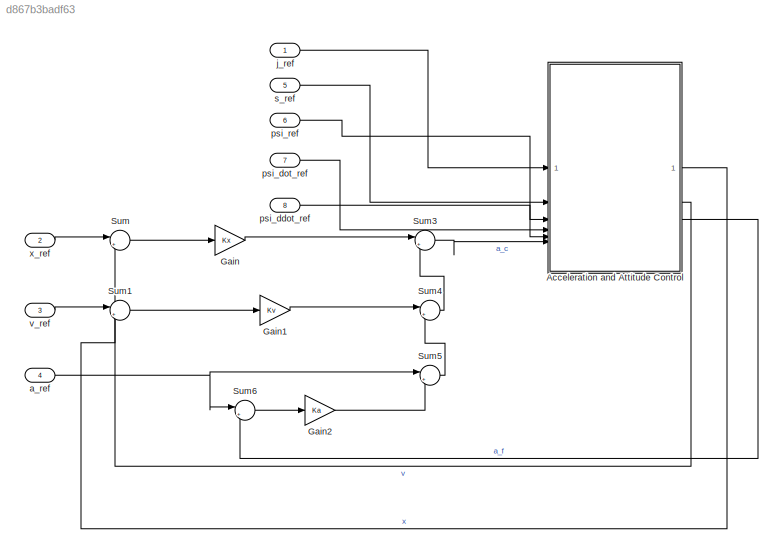
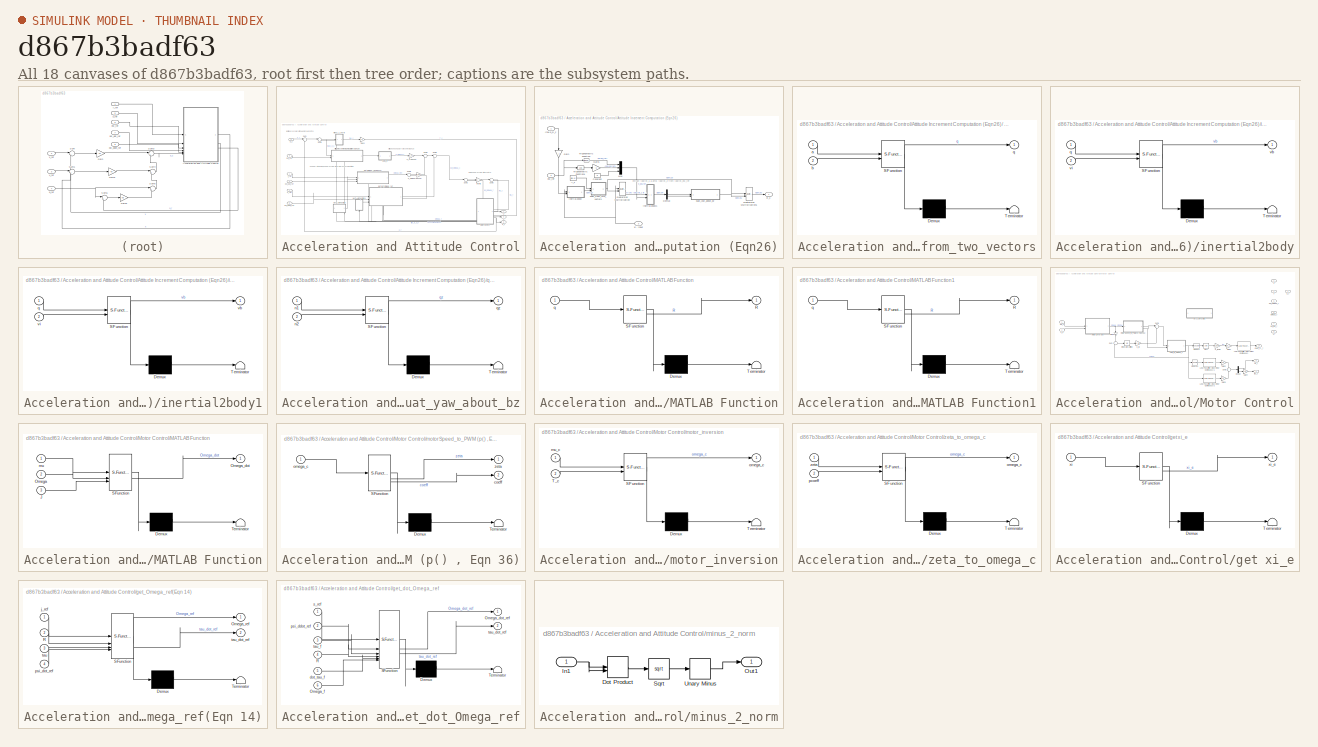
[diagram: thumbnail index - all 18 canvases of the model, root first then tree order]
MODEL slx_d867b3badf63
KIND model
CONFIG AbsTol = auto
CONFIG EnableMultiTasking = off
CONFIG FixedStep = auto
CONFIG MaxStep = auto
CONFIG MinStep = auto
CONFIG RelTol = 1e-3
CONFIG SampleTimeConstraint = Unconstrained
CONFIG SolverName = VariableStepAuto
CONFIG StartTime = 0.0
CONFIG StopTime = 10.0
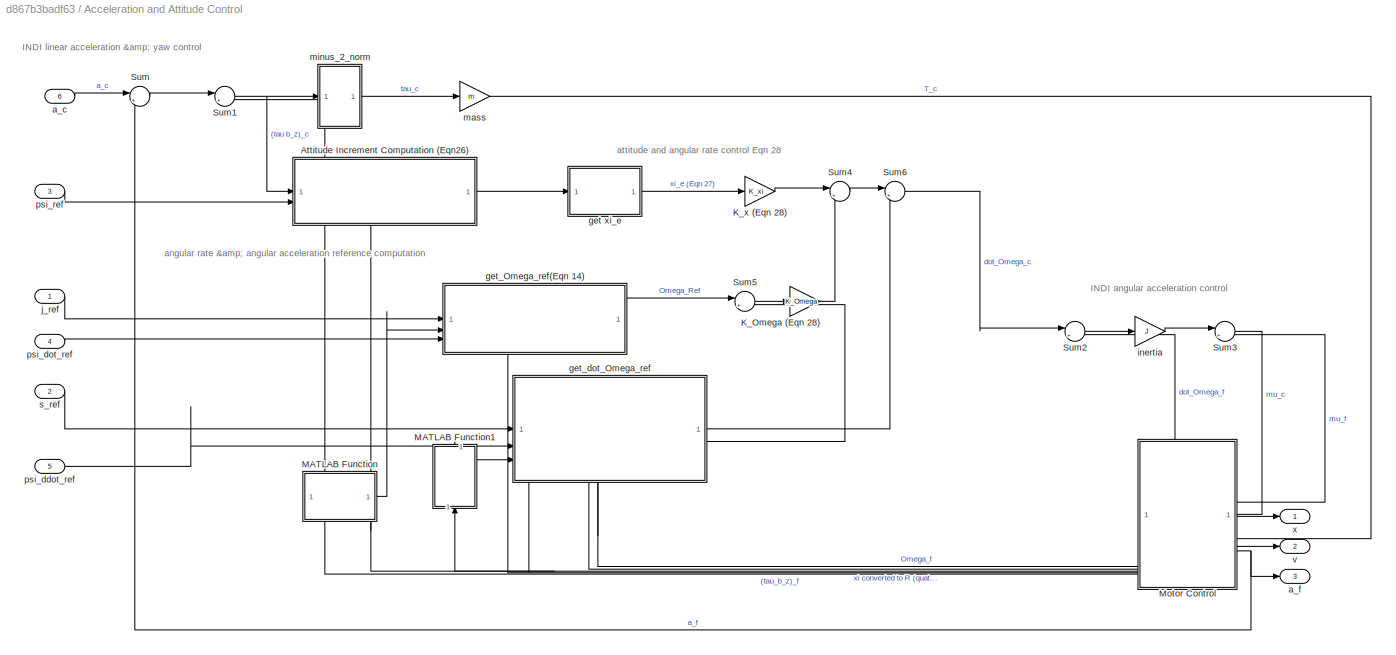
BLOCK [SubSystem] Acceleration and Attitude Control
BLOCK [SubSystem] Acceleration and Attitude Control/Attitude Increment Computation (Eqn26)
BLOCK [SubSystem] Acceleration and Attitude Control/Attitude Increment Computation (Eqn26)/ quat_from_two_vectors
  ErrorFcn = Stateflow.Translate.translate
  PermitHierarchicalResolution = ExplicitOnly
  SFBlockType = MATLAB Function
  TreatAsAtomicUnit = on
BLOCK [Demux] Acceleration and Attitude Control/Attitude Increment Computation (Eqn26)/ quat_from_two_vectors/ Demux 
  Outputs = 1
BLOCK [S-Function] Acceleration and Attitude Control/Attitude Increment Computation (Eqn26)/ quat_from_two_vectors/ SFunction 
  EnableBusSupport = off
  FunctionName = sf_sfun
  PortCounts = [2 2]
  SFcnIsStateOwnerBlock = off
  SFunctionDeploymentMode = off
  Tag = Stateflow S-Function 1
BLOCK [Terminator] Acceleration and Attitude Control/Attitude Increment Computation (Eqn26)/ quat_from_two_vectors/ Terminator 
BLOCK [Inport] Acceleration and Attitude Control/Attitude Increment Computation (Eqn26)/ quat_from_two_vectors/a
BLOCK [Inport] Acceleration and Attitude Control/Attitude Increment Computation (Eqn26)/ quat_from_two_vectors/b
  Port = 2
BLOCK [Outport] Acceleration and Attitude Control/Attitude Increment Computation (Eqn26)/ quat_from_two_vectors/q
BLOCK [Inport] Acceleration and Attitude Control/Attitude Increment Computation (Eqn26)/(tau b_z)_c
BLOCK [Constant] Acceleration and Attitude Control/Attitude Increment Computation (Eqn26)/-i_z
  Value = [0 0 -1]
BLOCK [Constant] Acceleration and Attitude Control/Attitude Increment Computation (Eqn26)/Constant
  Value = 0
BLOCK [Demux] Acceleration and Attitude Control/Attitude Increment Computation (Eqn26)/Demux
  Outputs = 2
BLOCK [Gain] Acceleration and Attitude Control/Attitude Increment Computation (Eqn26)/Gain
  Gain = -1
  NameLocation = left
BLOCK [Gain] Acceleration and Attitude Control/Attitude Increment Computation (Eqn26)/Gain1
  Gain = -1
BLOCK [Mux] Acceleration and Attitude Control/Attitude Increment Computation (Eqn26)/Mux
  DisplayOption = bar
  Inputs = 3
BLOCK [Reference] Acceleration and Attitude Control/Attitude Increment Computation (Eqn26)/Quaternion Multiplication  REF=aerolibutil/Quaternion
Multiplication
  SourceBlock = aerolibutil/Quaternion\nMultiplication
  SourceType = Quaternion Multiplication
BLOCK [Reference] Acceleration and Attitude Control/Attitude Increment Computation (Eqn26)/Quaternion Multiplication1  REF=aerolibutil/Quaternion
Multiplication
  SourceBlock = aerolibutil/Quaternion\nMultiplication
  SourceType = Quaternion Multiplication
BLOCK [Trigonometry] Acceleration and Attitude Control/Attitude Increment Computation (Eqn26)/Trigonometric Function
BLOCK [Trigonometry] Acceleration and Attitude Control/Attitude Increment Computation (Eqn26)/Trigonometric Function1
  Operator = cos
BLOCK [SubSystem] Acceleration and Attitude Control/Attitude Increment Computation (Eqn26)/inertial2body
  ErrorFcn = Stateflow.Translate.translate
  PermitHierarchicalResolution = ExplicitOnly
  SFBlockType = MATLAB Function
  TreatAsAtomicUnit = on
BLOCK [Demux] Acceleration and Attitude Control/Attitude Increment Computation (Eqn26)/inertial2body/ Demux 
  Outputs = 1
BLOCK [S-Function] Acceleration and Attitude Control/Attitude Increment Computation (Eqn26)/inertial2body/ SFunction 
  EnableBusSupport = off
  FunctionName = sf_sfun
  PortCounts = [2 2]
  SFcnIsStateOwnerBlock = off
  SFunctionDeploymentMode = off
  Tag = Stateflow S-Function 2
BLOCK [Terminator] Acceleration and Attitude Control/Attitude Increment Computation (Eqn26)/inertial2body/ Terminator 
BLOCK [Inport] Acceleration and Attitude Control/Attitude Increment Computation (Eqn26)/inertial2body/q
BLOCK [Outport] Acceleration and Attitude Control/Attitude Increment Computation (Eqn26)/inertial2body/vb
BLOCK [Inport] Acceleration and Attitude Control/Attitude Increment Computation (Eqn26)/inertial2body/vi
  Port = 2
BLOCK [SubSystem] Acceleration and Attitude Control/Attitude Increment Computation (Eqn26)/inertial2body1
  ErrorFcn = Stateflow.Translate.translate
  PermitHierarchicalResolution = ExplicitOnly
  SFBlockType = MATLAB Function
  TreatAsAtomicUnit = on
BLOCK [Demux] Acceleration and Attitude Control/Attitude Increment Computation (Eqn26)/inertial2body1/ Demux 
  Outputs = 1
BLOCK [S-Function] Acceleration and Attitude Control/Attitude Increment Computation (Eqn26)/inertial2body1/ SFunction 
  EnableBusSupport = off
  FunctionName = sf_sfun
  PortCounts = [2 2]
  SFcnIsStateOwnerBlock = off
  SFunctionDeploymentMode = off
  Tag = Stateflow S-Function 3
BLOCK [Terminator] Acceleration and Attitude Control/Attitude Increment Computation (Eqn26)/inertial2body1/ Terminator 
BLOCK [Inport] Acceleration and Attitude Control/Attitude Increment Computation (Eqn26)/inertial2body1/q
BLOCK [Outport] Acceleration and Attitude Control/Attitude Increment Computation (Eqn26)/inertial2body1/vb
BLOCK [Inport] Acceleration and Attitude Control/Attitude Increment Computation (Eqn26)/inertial2body1/vi
  Port = 2
BLOCK [Inport] Acceleration and Attitude Control/Attitude Increment Computation (Eqn26)/psi_ref
  Port = 2
BLOCK [SubSystem] Acceleration and Attitude Control/Attitude Increment Computation (Eqn26)/quat_yaw_about_bz
  ErrorFcn = Stateflow.Translate.translate
  PermitHierarchicalResolution = ExplicitOnly
  SFBlockType = MATLAB Function
  TreatAsAtomicUnit = on
BLOCK [Demux] Acceleration and Attitude Control/Attitude Increment Computation (Eqn26)/quat_yaw_about_bz/ Demux 
  Outputs = 1
BLOCK [S-Function] Acceleration and Attitude Control/Attitude Increment Computation (Eqn26)/quat_yaw_about_bz/ SFunction 
  EnableBusSupport = off
  FunctionName = sf_sfun
  PortCounts = [2 2]
  SFcnIsStateOwnerBlock = off
  SFunctionDeploymentMode = off
  Tag = Stateflow S-Function 4
BLOCK [Terminator] Acceleration and Attitude Control/Attitude Increment Computation (Eqn26)/quat_yaw_about_bz/ Terminator 
BLOCK [Inport] Acceleration and Attitude Control/Attitude Increment Computation (Eqn26)/quat_yaw_about_bz/n1
BLOCK [Inport] Acceleration and Attitude Control/Attitude Increment Computation (Eqn26)/quat_yaw_about_bz/n2
  Port = 2
BLOCK [Outport] Acceleration and Attitude Control/Attitude Increment Computation (Eqn26)/quat_yaw_about_bz/qz
BLOCK [Inport] Acceleration and Attitude Control/Attitude Increment Computation (Eqn26)/xi, input
  Port = 3
BLOCK [Outport] Acceleration and Attitude Control/Attitude Increment Computation (Eqn26)/xi_c
BLOCK [Gain] Acceleration and Attitude Control/K_Omega (Eqn 28)
  Gain = K_Omega
BLOCK [Gain] Acceleration and Attitude Control/K_x (Eqn 28)
  Gain = K_xi
BLOCK [SubSystem] Acceleration and Attitude Control/MATLAB Function
  ErrorFcn = Stateflow.Translate.translate
  PermitHierarchicalResolution = ExplicitOnly
  SFBlockType = MATLAB Function
  TreatAsAtomicUnit = on
BLOCK [Demux] Acceleration and Attitude Control/MATLAB Function/ Demux 
  Outputs = 1
BLOCK [S-Function] Acceleration and Attitude Control/MATLAB Function/ SFunction 
  EnableBusSupport = off
  FunctionName = sf_sfun
  PortCounts = [1 2]
  SFcnIsStateOwnerBlock = off
  SFunctionDeploymentMode = off
  Tag = Stateflow S-Function 6
BLOCK [Terminator] Acceleration and Attitude Control/MATLAB Function/ Terminator 
BLOCK [Outport] Acceleration and Attitude Control/MATLAB Function/R
BLOCK [Inport] Acceleration and Attitude Control/MATLAB Function/q
BLOCK [SubSystem] Acceleration and Attitude Control/MATLAB Function1
  ErrorFcn = Stateflow.Translate.translate
  NameLocation = right
  PermitHierarchicalResolution = ExplicitOnly
  SFBlockType = MATLAB Function
  TreatAsAtomicUnit = on
BLOCK [Demux] Acceleration and Attitude Control/MATLAB Function1/ Demux 
  Outputs = 1
BLOCK [S-Function] Acceleration and Attitude Control/MATLAB Function1/ SFunction 
  EnableBusSupport = off
  FunctionName = sf_sfun
  PortCounts = [1 2]
  SFcnIsStateOwnerBlock = off
  SFunctionDeploymentMode = off
  Tag = Stateflow S-Function 8
BLOCK [Terminator] Acceleration and Attitude Control/MATLAB Function1/ Terminator 
BLOCK [Outport] Acceleration and Attitude Control/MATLAB Function1/R
BLOCK [Inport] Acceleration and Attitude Control/MATLAB Function1/q
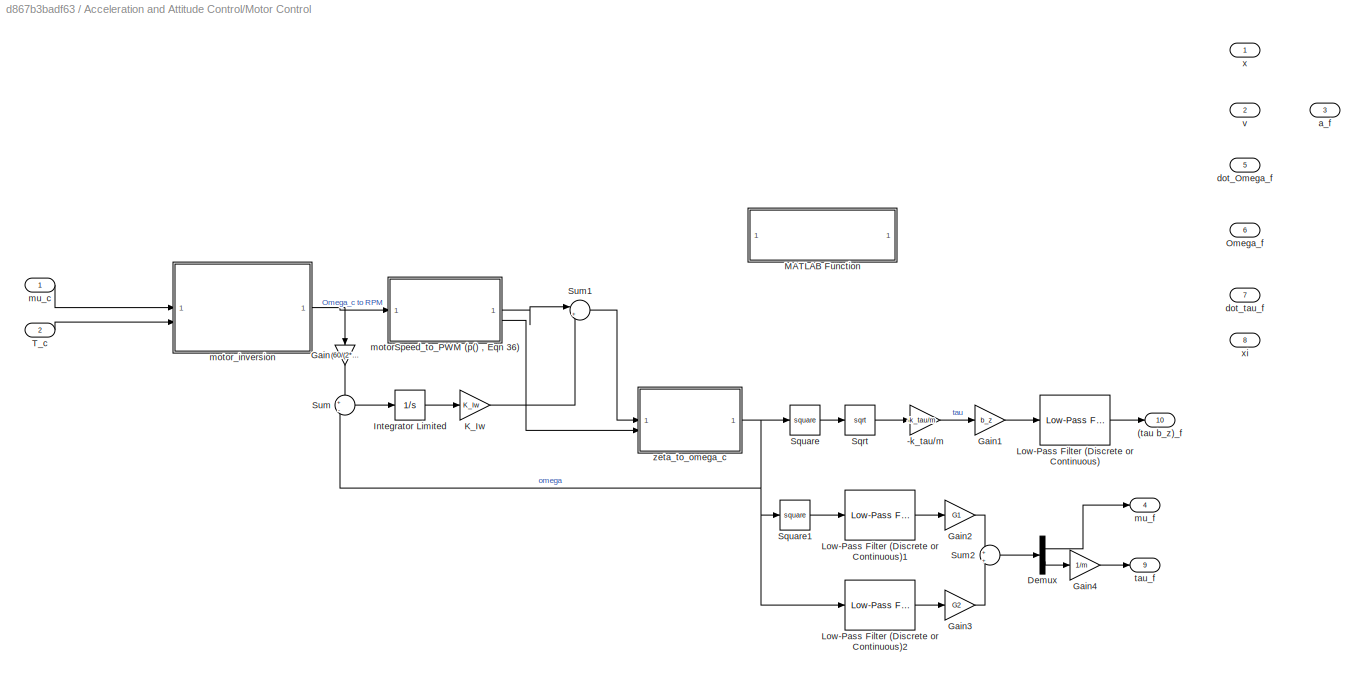
BLOCK [SubSystem] Acceleration and Attitude Control/Motor Control
  PortSchema = {"entries":[{"content":{"sides":[{"content":{"connectorIds":["Out4","Out5","Out6","Out7","Out8","Out9","Out10"]},"type":"ConnectorPlacement.EquallySpacedRectSide","uuid":"f723bf6c-4c67-423b-a9c3-cd0bb2707477"},{"content":{"connectorIds":["In1","In2","Out1","Out2","Out3"],"side":"RIGHT"},"type":"ConnectorPlacement.EquallySpacedRectSide","uuid":"19dd196b-8b88-4a00-85ef-e6774b90729c"},{"content":{"si...<+292ch>
BLOCK [Outport] Acceleration and Attitude Control/Motor Control/(tau b_z)_f
  Port = 10
BLOCK [Gain] Acceleration and Attitude Control/Motor Control/-k_tau//m
  Gain = -k_tau/m
BLOCK [Demux] Acceleration and Attitude Control/Motor Control/Demux
  Outputs = 2
BLOCK [Gain] Acceleration and Attitude Control/Motor Control/Gain
  Gain = (60/(2*pi))
  NameLocation = left
BLOCK [Gain] Acceleration and Attitude Control/Motor Control/Gain1
  Gain = b_z
BLOCK [Gain] Acceleration and Attitude Control/Motor Control/Gain2
  Gain = G1
BLOCK [Gain] Acceleration and Attitude Control/Motor Control/Gain3
  Gain = G2
BLOCK [Gain] Acceleration and Attitude Control/Motor Control/Gain4
  Gain = 1/m
BLOCK [Integrator] Acceleration and Attitude Control/Motor Control/Integrator Limited
  LimitOutput = on
  LowerSaturationLimit = 0
  UpperSaturationLimit = 22598
BLOCK [Gain] Acceleration and Attitude Control/Motor Control/K_Iw
  Gain = K_Iw
BLOCK [Reference] Acceleration and Attitude Control/Motor Control/Low-Pass Filter (Discrete or Continuous)  REF=eeGeneralControl/Low-Pass Filter
(Discrete or Continuous)
  LibrarySourceBlock = ee_sl_lib/General Control/Low-Pass Filter\n(Discrete or Continuous)
  SourceBlock = eeGeneralControl/Low-Pass Filter\n(Discrete or Continuous)
  SourceType = Low-Pass Filter (Discrete or Continuous)
BLOCK [Reference] Acceleration and Attitude Control/Motor Control/Low-Pass Filter (Discrete or Continuous)1  REF=eeGeneralControl/Low-Pass Filter
(Discrete or Continuous)
  LibrarySourceBlock = ee_sl_lib/General Control/Low-Pass Filter\n(Discrete or Continuous)
  SourceBlock = eeGeneralControl/Low-Pass Filter\n(Discrete or Continuous)
  SourceType = Low-Pass Filter (Discrete or Continuous)
BLOCK [Reference] Acceleration and Attitude Control/Motor Control/Low-Pass Filter (Discrete or Continuous)2  REF=eeGeneralControl/Low-Pass Filter
(Discrete or Continuous)
  LibrarySourceBlock = ee_sl_lib/General Control/Low-Pass Filter\n(Discrete or Continuous)
  SourceBlock = eeGeneralControl/Low-Pass Filter\n(Discrete or Continuous)
  SourceType = Low-Pass Filter (Discrete or Continuous)
BLOCK [SubSystem] Acceleration and Attitude Control/Motor Control/MATLAB Function
  ErrorFcn = Stateflow.Translate.translate
  PermitHierarchicalResolution = ExplicitOnly
  SFBlockType = MATLAB Function
  TreatAsAtomicUnit = on
BLOCK [Demux] Acceleration and Attitude Control/Motor Control/MATLAB Function/ Demux 
  Outputs = 1
BLOCK [S-Function] Acceleration and Attitude Control/Motor Control/MATLAB Function/ SFunction 
  EnableBusSupport = off
  FunctionName = sf_sfun
  PortCounts = [3 2]
  SFcnIsStateOwnerBlock = off
  SFunctionDeploymentMode = off
  Tag = Stateflow S-Function 13
BLOCK [Terminator] Acceleration and Attitude Control/Motor Control/MATLAB Function/ Terminator 
BLOCK [Inport] Acceleration and Attitude Control/Motor Control/MATLAB Function/J
  Port = 3
BLOCK [Inport] Acceleration and Attitude Control/Motor Control/MATLAB Function/Omega
  Port = 2
BLOCK [Outport] Acceleration and Attitude Control/Motor Control/MATLAB Function/Omega_dot
BLOCK [Inport] Acceleration and Attitude Control/Motor Control/MATLAB Function/mu
BLOCK [Outport] Acceleration and Attitude Control/Motor Control/Omega_f
  Port = 6
BLOCK [Sqrt] Acceleration and Attitude Control/Motor Control/Sqrt
BLOCK [Math] Acceleration and Attitude Control/Motor Control/Square
  Operator = square
BLOCK [Math] Acceleration and Attitude Control/Motor Control/Square1
  Operator = square
BLOCK [Sum] Acceleration and Attitude Control/Motor Control/Sum
  Inputs = +|-
BLOCK [Sum] Acceleration and Attitude Control/Motor Control/Sum1
  Inputs = |++
BLOCK [Sum] Acceleration and Attitude Control/Motor Control/Sum2
  Inputs = +|+
BLOCK [Inport] Acceleration and Attitude Control/Motor Control/T_c
  Port = 2
BLOCK [Outport] Acceleration and Attitude Control/Motor Control/a_f
  Port = 3
BLOCK [Outport] Acceleration and Attitude Control/Motor Control/dot_Omega_f
  Port = 5
BLOCK [Outport] Acceleration and Attitude Control/Motor Control/dot_tau_f
  Port = 7
BLOCK [SubSystem] Acceleration and Attitude Control/Motor Control/motorSpeed_to_PWM (p() , Eqn 36)
  ErrorFcn = Stateflow.Translate.translate
  PermitHierarchicalResolution = ExplicitOnly
  SFBlockType = MATLAB Function
  TreatAsAtomicUnit = on
BLOCK [Demux] Acceleration and Attitude Control/Motor Control/motorSpeed_to_PWM (p() , Eqn 36)/ Demux 
  Outputs = 1
BLOCK [S-Function] Acceleration and Attitude Control/Motor Control/motorSpeed_to_PWM (p() , Eqn 36)/ SFunction 
  EnableBusSupport = off
  FunctionName = sf_sfun
  PortCounts = [1 3]
  SFcnIsStateOwnerBlock = off
  SFunctionDeploymentMode = off
  Tag = Stateflow S-Function 11
BLOCK [Terminator] Acceleration and Attitude Control/Motor Control/motorSpeed_to_PWM (p() , Eqn 36)/ Terminator 
BLOCK [Outport] Acceleration and Attitude Control/Motor Control/motorSpeed_to_PWM (p() , Eqn 36)/coeff
  Port = 2
BLOCK [Inport] Acceleration and Attitude Control/Motor Control/motorSpeed_to_PWM (p() , Eqn 36)/omega_c
BLOCK [Outport] Acceleration and Attitude Control/Motor Control/motorSpeed_to_PWM (p() , Eqn 36)/zeta
BLOCK [SubSystem] Acceleration and Attitude Control/Motor Control/motor_inversion
  ErrorFcn = Stateflow.Translate.translate
  PermitHierarchicalResolution = ExplicitOnly
  SFBlockType = MATLAB Function
  TreatAsAtomicUnit = on
BLOCK [Demux] Acceleration and Attitude Control/Motor Control/motor_inversion/ Demux 
  Outputs = 1
BLOCK [S-Function] Acceleration and Attitude Control/Motor Control/motor_inversion/ SFunction 
  EnableBusSupport = off
  FunctionName = sf_sfun
  PortCounts = [2 2]
  SFcnIsStateOwnerBlock = off
  SFunctionDeploymentMode = off
  Tag = Stateflow S-Function 10
BLOCK [Terminator] Acceleration and Attitude Control/Motor Control/motor_inversion/ Terminator 
BLOCK [Inport] Acceleration and Attitude Control/Motor Control/motor_inversion/T_c
  Port = 2
BLOCK [Inport] Acceleration and Attitude Control/Motor Control/motor_inversion/mu_c
BLOCK [Outport] Acceleration and Attitude Control/Motor Control/motor_inversion/omega_c
BLOCK [Inport] Acceleration and Attitude Control/Motor Control/mu_c
BLOCK [Outport] Acceleration and Attitude Control/Motor Control/mu_f
  Port = 4
BLOCK [Outport] Acceleration and Attitude Control/Motor Control/tau_f
  Port = 9
BLOCK [Outport] Acceleration and Attitude Control/Motor Control/v
  Port = 2
BLOCK [Outport] Acceleration and Attitude Control/Motor Control/x
BLOCK [Outport] Acceleration and Attitude Control/Motor Control/xi
  Port = 8
BLOCK [SubSystem] Acceleration and Attitude Control/Motor Control/zeta_to_omega_c
  ErrorFcn = Stateflow.Translate.translate
  PermitHierarchicalResolution = ExplicitOnly
  SFBlockType = MATLAB Function
  TreatAsAtomicUnit = on
BLOCK [Demux] Acceleration and Attitude Control/Motor Control/zeta_to_omega_c/ Demux 
  Outputs = 1
BLOCK [S-Function] Acceleration and Attitude Control/Motor Control/zeta_to_omega_c/ SFunction 
  EnableBusSupport = off
  FunctionName = sf_sfun
  PortCounts = [2 2]
  SFcnIsStateOwnerBlock = off
  SFunctionDeploymentMode = off
  Tag = Stateflow S-Function 12
BLOCK [Terminator] Acceleration and Attitude Control/Motor Control/zeta_to_omega_c/ Terminator 
BLOCK [Outport] Acceleration and Attitude Control/Motor Control/zeta_to_omega_c/omega_c
BLOCK [Inport] Acceleration and Attitude Control/Motor Control/zeta_to_omega_c/pcoeff
  Port = 2
BLOCK [Inport] Acceleration and Attitude Control/Motor Control/zeta_to_omega_c/zeta
BLOCK [Sum] Acceleration and Attitude Control/Sum
  Inputs = |+-
BLOCK [Sum] Acceleration and Attitude Control/Sum1
  Inputs = |++
BLOCK [Sum] Acceleration and Attitude Control/Sum2
  Inputs = |+-
BLOCK [Sum] Acceleration and Attitude Control/Sum3
  Inputs = |++
BLOCK [Sum] Acceleration and Attitude Control/Sum4
  Inputs = |++
BLOCK [Sum] Acceleration and Attitude Control/Sum5
  Inputs = |+-
BLOCK [Sum] Acceleration and Attitude Control/Sum6
  Inputs = |++
BLOCK [Inport] Acceleration and Attitude Control/a_c
  Port = 6
BLOCK [Outport] Acceleration and Attitude Control/a_f
  Port = 3
BLOCK [SubSystem] Acceleration and Attitude Control/get xi_e
  ErrorFcn = Stateflow.Translate.translate
  PermitHierarchicalResolution = ExplicitOnly
  SFBlockType = MATLAB Function
  TreatAsAtomicUnit = on
BLOCK [Demux] Acceleration and Attitude Control/get xi_e/ Demux 
  Outputs = 1
BLOCK [S-Function] Acceleration and Attitude Control/get xi_e/ SFunction 
  EnableBusSupport = off
  FunctionName = sf_sfun
  PortCounts = [1 2]
  SFcnIsStateOwnerBlock = off
  SFunctionDeploymentMode = off
  Tag = Stateflow S-Function 9
BLOCK [Terminator] Acceleration and Attitude Control/get xi_e/ Terminator 
BLOCK [Inport] Acceleration and Attitude Control/get xi_e/xi
BLOCK [Outport] Acceleration and Attitude Control/get xi_e/xi_e
BLOCK [SubSystem] Acceleration and Attitude Control/get_Omega_ref(Eqn 14)
  ErrorFcn = Stateflow.Translate.translate
  PermitHierarchicalResolution = ExplicitOnly
  SFBlockType = MATLAB Function
  TreatAsAtomicUnit = on
BLOCK [Demux] Acceleration and Attitude Control/get_Omega_ref(Eqn 14)/ Demux 
  Outputs = 1
BLOCK [S-Function] Acceleration and Attitude Control/get_Omega_ref(Eqn 14)/ SFunction 
  EnableBusSupport = off
  FunctionName = sf_sfun
  PortCounts = [4 3]
  SFcnIsStateOwnerBlock = off
  SFunctionDeploymentMode = off
  Tag = Stateflow S-Function 5
BLOCK [Terminator] Acceleration and Attitude Control/get_Omega_ref(Eqn 14)/ Terminator 
BLOCK [Outport] Acceleration and Attitude Control/get_Omega_ref(Eqn 14)/Omega_ref
BLOCK [Inport] Acceleration and Attitude Control/get_Omega_ref(Eqn 14)/R
  Port = 2
BLOCK [Inport] Acceleration and Attitude Control/get_Omega_ref(Eqn 14)/j_ref
BLOCK [Inport] Acceleration and Attitude Control/get_Omega_ref(Eqn 14)/psi_dot_ref
  Port = 4
BLOCK [Inport] Acceleration and Attitude Control/get_Omega_ref(Eqn 14)/tau
  Port = 3
BLOCK [Outport] Acceleration and Attitude Control/get_Omega_ref(Eqn 14)/tau_dot_ref
  Port = 2
BLOCK [SubSystem] Acceleration and Attitude Control/get_dot_Omega_ref
  ErrorFcn = Stateflow.Translate.translate
  PermitHierarchicalResolution = ExplicitOnly
  SFBlockType = MATLAB Function
  TreatAsAtomicUnit = on
BLOCK [Demux] Acceleration and Attitude Control/get_dot_Omega_ref/ Demux 
  Outputs = 1
BLOCK [S-Function] Acceleration and Attitude Control/get_dot_Omega_ref/ SFunction 
  EnableBusSupport = off
  FunctionName = sf_sfun
  PortCounts = [6 3]
  SFcnIsStateOwnerBlock = off
  SFunctionDeploymentMode = off
  Tag = Stateflow S-Function 7
BLOCK [Terminator] Acceleration and Attitude Control/get_dot_Omega_ref/ Terminator 
BLOCK [Outport] Acceleration and Attitude Control/get_dot_Omega_ref/Omega_dot_ref
BLOCK [Inport] Acceleration and Attitude Control/get_dot_Omega_ref/Omega_f
  Port = 6
BLOCK [Inport] Acceleration and Attitude Control/get_dot_Omega_ref/R
  Port = 4
BLOCK [Inport] Acceleration and Attitude Control/get_dot_Omega_ref/dot_tau_f
  Port = 5
BLOCK [Inport] Acceleration and Attitude Control/get_dot_Omega_ref/psi_ddot_ref
  Port = 2
BLOCK [Inport] Acceleration and Attitude Control/get_dot_Omega_ref/s_ref
BLOCK [Outport] Acceleration and Attitude Control/get_dot_Omega_ref/tau_dot_ref
  Port = 2
BLOCK [Inport] Acceleration and Attitude Control/get_dot_Omega_ref/tau_f
  Port = 3
BLOCK [Gain] Acceleration and Attitude Control/inertia
  Gain = J
BLOCK [Inport] Acceleration and Attitude Control/j_ref
BLOCK [Gain] Acceleration and Attitude Control/mass
  Gain = m
BLOCK [SubSystem] Acceleration and Attitude Control/minus_2_norm
BLOCK [DotProduct] Acceleration and Attitude Control/minus_2_norm/Dot Product
  OutDataTypeStr = Inherit: Inherit via internal rule
BLOCK [Inport] Acceleration and Attitude Control/minus_2_norm/In1
BLOCK [Outport] Acceleration and Attitude Control/minus_2_norm/Out1
BLOCK [Sqrt] Acceleration and Attitude Control/minus_2_norm/Sqrt
BLOCK [UnaryMinus] Acceleration and Attitude Control/minus_2_norm/Unary Minus
BLOCK [Inport] Acceleration and Attitude Control/psi_ddot_ref
  Port = 5
BLOCK [Inport] Acceleration and Attitude Control/psi_dot_ref
  Port = 4
BLOCK [Inport] Acceleration and Attitude Control/psi_ref
  Port = 3
BLOCK [Inport] Acceleration and Attitude Control/s_ref
  Port = 2
BLOCK [Outport] Acceleration and Attitude Control/v
  Port = 2
BLOCK [Outport] Acceleration and Attitude Control/x
BLOCK [Gain] Gain
  Gain = Kx
BLOCK [Gain] Gain1
  Gain = Kv
BLOCK [Gain] Gain2
  Gain = Ka
BLOCK [Sum] Sum
  Inputs = |+-
BLOCK [Sum] Sum1
  Inputs = |+-
BLOCK [Sum] Sum3
  Inputs = |++
BLOCK [Sum] Sum4
  Inputs = |++
BLOCK [Sum] Sum5
  Inputs = |++
BLOCK [Sum] Sum6
  Inputs = |+-
BLOCK [Inport] a_ref
  Port = 4
BLOCK [Inport] j_ref
BLOCK [Inport] psi_ddot_ref
  Port = 8
BLOCK [Inport] psi_dot_ref
  Port = 7
BLOCK [Inport] psi_ref
  Port = 6
BLOCK [Inport] s_ref
  Port = 5
BLOCK [Inport] v_ref
  Port = 3
BLOCK [Inport] x_ref
  Port = 2
ANNOTATION Acceleration and Attitude Control: INDI linear acceleration & yaw control
ANNOTATION Acceleration and Attitude Control: INDI angular acceleration control
ANNOTATION Acceleration and Attitude Control: angular rate & angular acceleration reference computation
ANNOTATION Acceleration and Attitude Control: attitude and angular rate control Eqn 28
ANNOTATION Acceleration and Attitude Control/Attitude Increment Computation (Eqn26): extract \bar{n}_1 & \bar{n}_2 from \bar{n}_psi_ref
NET Acceleration and Attitude Control/Attitude Increment Computation (Eqn26)/ quat_from_two_vectors:1 -> Acceleration and Attitude Control/Attitude Increment Computation (Eqn26)/Quaternion Multiplication1:1, Acceleration and Attitude Control/Attitude Increment Computation (Eqn26)/Quaternion Multiplication:2
LINE Acceleration and Attitude Control/Attitude Increment Computation (Eqn26)/(tau b_z)_c:1 -> Acceleration and Attitude Control/Attitude Increment Computation (Eqn26)/Gain:1
LINE Acceleration and Attitude Control/Attitude Increment Computation (Eqn26)/-i_z:1 -> Acceleration and Attitude Control/Attitude Increment Computation (Eqn26)/ quat_from_two_vectors:1
LINE Acceleration and Attitude Control/Attitude Increment Computation (Eqn26)/Constant:1 -> Acceleration and Attitude Control/Attitude Increment Computation (Eqn26)/Mux:3
LINE Acceleration and Attitude Control/Attitude Increment Computation (Eqn26)/Demux:1 -> Acceleration and Attitude Control/Attitude Increment Computation (Eqn26)/quat_yaw_about_bz:1
LINE Acceleration and Attitude Control/Attitude Increment Computation (Eqn26)/Demux:2 -> Acceleration and Attitude Control/Attitude Increment Computation (Eqn26)/quat_yaw_about_bz:2
LINE Acceleration and Attitude Control/Attitude Increment Computation (Eqn26)/Gain1:1 -> Acceleration and Attitude Control/Attitude Increment Computation (Eqn26)/Mux:2
LINE Acceleration and Attitude Control/Attitude Increment Computation (Eqn26)/Gain:1 -> Acceleration and Attitude Control/Attitude Increment Computation (Eqn26)/inertial2body:2
LINE Acceleration and Attitude Control/Attitude Increment Computation (Eqn26)/Mux:1 -> Acceleration and Attitude Control/Attitude Increment Computation (Eqn26)/inertial2body1:2
LINE Acceleration and Attitude Control/Attitude Increment Computation (Eqn26)/Quaternion Multiplication1:1 -> Acceleration and Attitude Control/Attitude Increment Computation (Eqn26)/xi_c:1
LINE Acceleration and Attitude Control/Attitude Increment Computation (Eqn26)/Quaternion Multiplication:1 -> Acceleration and Attitude Control/Attitude Increment Computation (Eqn26)/inertial2body1:1
LINE Acceleration and Attitude Control/Attitude Increment Computation (Eqn26)/Trigonometric Function1:1 -> Acceleration and Attitude Control/Attitude Increment Computation (Eqn26)/Gain1:1
LINE Acceleration and Attitude Control/Attitude Increment Computation (Eqn26)/Trigonometric Function:1 -> Acceleration and Attitude Control/Attitude Increment Computation (Eqn26)/Mux:1
LINE Acceleration and Attitude Control/Attitude Increment Computation (Eqn26)/inertial2body1:1 -> Acceleration and Attitude Control/Attitude Increment Computation (Eqn26)/Demux:1
LINE Acceleration and Attitude Control/Attitude Increment Computation (Eqn26)/inertial2body:1 -> Acceleration and Attitude Control/Attitude Increment Computation (Eqn26)/ quat_from_two_vectors:2
NET Acceleration and Attitude Control/Attitude Increment Computation (Eqn26)/psi_ref:1 -> Acceleration and Attitude Control/Attitude Increment Computation (Eqn26)/Trigonometric Function1:1, Acceleration and Attitude Control/Attitude Increment Computation (Eqn26)/Trigonometric Function:1
LINE Acceleration and Attitude Control/Attitude Increment Computation (Eqn26)/quat_yaw_about_bz:1 -> Acceleration and Attitude Control/Attitude Increment Computation (Eqn26)/Quaternion Multiplication1:2
NET Acceleration and Attitude Control/Attitude Increment Computation (Eqn26)/xi, input:1 -> Acceleration and Attitude Control/Attitude Increment Computation (Eqn26)/Quaternion Multiplication:1, Acceleration and Attitude Control/Attitude Increment Computation (Eqn26)/inertial2body:1
LINE Acceleration and Attitude Control/Attitude Increment Computation (Eqn26):1 -> Acceleration and Attitude Control/get xi_e:1
LINE Acceleration and Attitude Control/K_Omega (Eqn 28):1 -> Acceleration and Attitude Control/Sum4:2
LINE Acceleration and Attitude Control/K_x (Eqn 28):1 -> Acceleration and Attitude Control/Sum4:1
LINE Acceleration and Attitude Control/MATLAB Function1:1 -> Acceleration and Attitude Control/get_dot_Omega_ref:4
LINE Acceleration and Attitude Control/MATLAB Function:1 -> Acceleration and Attitude Control/get_Omega_ref(Eqn 14):2
LINE Acceleration and Attitude Control/Motor Control/-k_tau//m:1 -> Acceleration and Attitude Control/Motor Control/Gain1:1
LINE Acceleration and Attitude Control/Motor Control/Demux:1 -> Acceleration and Attitude Control/Motor Control/mu_f:1
LINE Acceleration and Attitude Control/Motor Control/Demux:2 -> Acceleration and Attitude Control/Motor Control/Gain4:1
LINE Acceleration and Attitude Control/Motor Control/Gain1:1 -> Acceleration and Attitude Control/Motor Control/Low-Pass Filter (Discrete or Continuous):1
LINE Acceleration and Attitude Control/Motor Control/Gain2:1 -> Acceleration and Attitude Control/Motor Control/Sum2:1
LINE Acceleration and Attitude Control/Motor Control/Gain3:1 -> Acceleration and Attitude Control/Motor Control/Sum2:2
LINE Acceleration and Attitude Control/Motor Control/Gain4:1 -> Acceleration and Attitude Control/Motor Control/tau_f:1
LINE Acceleration and Attitude Control/Motor Control/Gain:1 -> Acceleration and Attitude Control/Motor Control/Sum:1
LINE Acceleration and Attitude Control/Motor Control/Integrator Limited:1 -> Acceleration and Attitude Control/Motor Control/K_Iw:1
LINE Acceleration and Attitude Control/Motor Control/K_Iw:1 -> Acceleration and Attitude Control/Motor Control/Sum1:2
LINE Acceleration and Attitude Control/Motor Control/Low-Pass Filter (Discrete or Continuous)1:1 -> Acceleration and Attitude Control/Motor Control/Gain2:1
LINE Acceleration and Attitude Control/Motor Control/Low-Pass Filter (Discrete or Continuous)2:1 -> Acceleration and Attitude Control/Motor Control/Gain3:1
LINE Acceleration and Attitude Control/Motor Control/Low-Pass Filter (Discrete or Continuous):1 -> Acceleration and Attitude Control/Motor Control/(tau b_z)_f:1
LINE Acceleration and Attitude Control/Motor Control/Sqrt:1 -> Acceleration and Attitude Control/Motor Control/-k_tau//m:1
LINE Acceleration and Attitude Control/Motor Control/Square1:1 -> Acceleration and Attitude Control/Motor Control/Low-Pass Filter (Discrete or Continuous)1:1
LINE Acceleration and Attitude Control/Motor Control/Square:1 -> Acceleration and Attitude Control/Motor Control/Sqrt:1
LINE Acceleration and Attitude Control/Motor Control/Sum1:1 -> Acceleration and Attitude Control/Motor Control/zeta_to_omega_c:1
LINE Acceleration and Attitude Control/Motor Control/Sum2:1 -> Acceleration and Attitude Control/Motor Control/Demux:1
LINE Acceleration and Attitude Control/Motor Control/Sum:1 -> Acceleration and Attitude Control/Motor Control/Integrator Limited:1
LINE Acceleration and Attitude Control/Motor Control/T_c:1 -> Acceleration and Attitude Control/Motor Control/motor_inversion:2
LINE Acceleration and Attitude Control/Motor Control/motorSpeed_to_PWM (p() , Eqn 36):1 -> Acceleration and Attitude Control/Motor Control/Sum1:1
LINE Acceleration and Attitude Control/Motor Control/motorSpeed_to_PWM (p() , Eqn 36):2 -> Acceleration and Attitude Control/Motor Control/zeta_to_omega_c:2
NET Acceleration and Attitude Control/Motor Control/motor_inversion:1 -> Acceleration and Attitude Control/Motor Control/Gain:1, Acceleration and Attitude Control/Motor Control/motorSpeed_to_PWM (p() , Eqn 36):1
LINE Acceleration and Attitude Control/Motor Control/mu_c:1 -> Acceleration and Attitude Control/Motor Control/motor_inversion:1
NET Acceleration and Attitude Control/Motor Control/zeta_to_omega_c:1 -> Acceleration and Attitude Control/Motor Control/Low-Pass Filter (Discrete or Continuous)2:1, Acceleration and Attitude Control/Motor Control/Square1:1, Acceleration and Attitude Control/Motor Control/Square:1, Acceleration and Attitude Control/Motor Control/Sum:2
LINE Acceleration and Attitude Control/Motor Control:1 -> Acceleration and Attitude Control/x:1
LINE Acceleration and Attitude Control/Motor Control:10 -> Acceleration and Attitude Control/Sum1:2
LINE Acceleration and Attitude Control/Motor Control:2 -> Acceleration and Attitude Control/v:1
NET Acceleration and Attitude Control/Motor Control:3 -> Acceleration and Attitude Control/Sum:2, Acceleration and Attitude Control/a_f:1
LINE Acceleration and Attitude Control/Motor Control:4 -> Acceleration and Attitude Control/Sum3:2
LINE Acceleration and Attitude Control/Motor Control:5 -> Acceleration and Attitude Control/Sum2:2
NET Acceleration and Attitude Control/Motor Control:6 -> Acceleration and Attitude Control/Sum5:2, Acceleration and Attitude Control/get_dot_Omega_ref:6
LINE Acceleration and Attitude Control/Motor Control:7 -> Acceleration and Attitude Control/get_dot_Omega_ref:5
NET Acceleration and Attitude Control/Motor Control:8 -> Acceleration and Attitude Control/Attitude Increment Computation (Eqn26):3, Acceleration and Attitude Control/MATLAB Function1:1, Acceleration and Attitude Control/MATLAB Function:1
NET Acceleration and Attitude Control/Motor Control:9 -> Acceleration and Attitude Control/get_Omega_ref(Eqn 14):3, Acceleration and Attitude Control/get_dot_Omega_ref:3
NET Acceleration and Attitude Control/Sum1:1 -> Acceleration and Attitude Control/Attitude Increment Computation (Eqn26):1, Acceleration and Attitude Control/minus_2_norm:1
LINE Acceleration and Attitude Control/Sum2:1 -> Acceleration and Attitude Control/inertia:1
LINE Acceleration and Attitude Control/Sum3:1 -> Acceleration and Attitude Control/Motor Control:1
LINE Acceleration and Attitude Control/Sum4:1 -> Acceleration and Attitude Control/Sum6:1
LINE Acceleration and Attitude Control/Sum5:1 -> Acceleration and Attitude Control/K_Omega (Eqn 28):1
LINE Acceleration and Attitude Control/Sum6:1 -> Acceleration and Attitude Control/Sum2:1
LINE Acceleration and Attitude Control/Sum:1 -> Acceleration and Attitude Control/Sum1:1
LINE Acceleration and Attitude Control/a_c:1 -> Acceleration and Attitude Control/Sum:1
LINE Acceleration and Attitude Control/get xi_e:1 -> Acceleration and Attitude Control/K_x (Eqn 28):1
LINE Acceleration and Attitude Control/get_Omega_ref(Eqn 14):1 -> Acceleration and Attitude Control/Sum5:1
LINE Acceleration and Attitude Control/get_dot_Omega_ref:1 -> Acceleration and Attitude Control/Sum6:2
LINE Acceleration and Attitude Control/inertia:1 -> Acceleration and Attitude Control/Sum3:1
LINE Acceleration and Attitude Control/j_ref:1 -> Acceleration and Attitude Control/get_Omega_ref(Eqn 14):1
LINE Acceleration and Attitude Control/mass:1 -> Acceleration and Attitude Control/Motor Control:2
LINE Acceleration and Attitude Control/minus_2_norm/Dot Product:1 -> Acceleration and Attitude Control/minus_2_norm/Sqrt:1
NET Acceleration and Attitude Control/minus_2_norm/In1:1 -> Acceleration and Attitude Control/minus_2_norm/Dot Product:1, Acceleration and Attitude Control/minus_2_norm/Dot Product:2
LINE Acceleration and Attitude Control/minus_2_norm/Sqrt:1 -> Acceleration and Attitude Control/minus_2_norm/Unary Minus:1
LINE Acceleration and Attitude Control/minus_2_norm/Unary Minus:1 -> Acceleration and Attitude Control/minus_2_norm/Out1:1
LINE Acceleration and Attitude Control/minus_2_norm:1 -> Acceleration and Attitude Control/mass:1
LINE Acceleration and Attitude Control/psi_ddot_ref:1 -> Acceleration and Attitude Control/get_dot_Omega_ref:2
LINE Acceleration and Attitude Control/psi_dot_ref:1 -> Acceleration and Attitude Control/get_Omega_ref(Eqn 14):4
LINE Acceleration and Attitude Control/psi_ref:1 -> Acceleration and Attitude Control/Attitude Increment Computation (Eqn26):2
LINE Acceleration and Attitude Control/s_ref:1 -> Acceleration and Attitude Control/get_dot_Omega_ref:1
LINE Acceleration and Attitude Control:1 -> Sum:2
LINE Acceleration and Attitude Control:2 -> Sum1:2
LINE Acceleration and Attitude Control:3 -> Sum6:2
LINE Gain1:1 -> Sum4:1
LINE Gain2:1 -> Sum5:2
LINE Gain:1 -> Sum3:1
LINE Sum1:1 -> Gain1:1
LINE Sum3:1 -> Acceleration and Attitude Control:6
LINE Sum4:1 -> Sum3:2
LINE Sum5:1 -> Sum4:2
LINE Sum6:1 -> Gain2:1
LINE Sum:1 -> Gain:1
NET a_ref:1 -> Sum5:1, Sum6:1
LINE j_ref:1 -> Acceleration and Attitude Control:1
LINE psi_ddot_ref:1 -> Acceleration and Attitude Control:5
LINE psi_dot_ref:1 -> Acceleration and Attitude Control:4
LINE psi_ref:1 -> Acceleration and Attitude Control:3
LINE s_ref:1 -> Acceleration and Attitude Control:2
LINE v_ref:1 -> Sum1:1
LINE x_ref:1 -> Sum:1
note: NET lines group one-source signal fan-out (src -> all destinations, sorted); 1:1 wires keep LINE
CHART Acceleration and Attitude Control/Motor Control/zeta_to_omega_c states=1 transitions=1
  STATE_LABEL 'eML_blk_kernel()'
  STATE_LABEL 'SCRIPT:\nfunction omega_c = p_inv(zeta, pcoeff)\n% pcoeff: polynomial coeffs for zeta = p(omega)\nomega_c = zeros(4,1);\nfor i=1:4\n    c = pcoeff(i,:);           % [a2 a1 a0] or [a3 a2 a1 a0]\n    % initial guess (scale ζ by table limits)\n    w0 = 20000*zeta(i);\n    f  = @(w) polyval(c,w) - zeta(i);\n    omega_c(i) = fzero(f, max(1,w0));\nend\nend'
CHART Acceleration and Attitude Control/Motor Control/MATLAB Function states=1 transitions=1
  STATE_LABEL 'eML_blk_kernel()'
  STATE_LABEL 'SCRIPT:\nfunction Omega_dot = omega_dot(mu, Omega, J)\nOmega_dot = J \\ (mu - cross(Omega, J*Omega));\nend'
CHART Acceleration and Attitude Control/Attitude Increment Computation (Eqn26)/ quat_from_two_vectors states=1 transitions=1
  STATE_LABEL 'eML_blk_kernel()'
  STATE_LABEL "SCRIPT:\nfunction q = quat_from_two_vectors(a,b)\n% a,b 3x1 or 1x3, assumed unit\na = a(:)/norm(a); b = b(:)/norm(b);\nw = 1 + dot(a,b);\nv = cross(a,b);\nif w < 1e-6         % nearly 180 deg: pick any axis ⟂ a\n    w = 0;\n    % for a = [0;0;-1], an easy orthogonal axis:\n    v = [1;0;0];\nend\nq = [w; v];         % [w;x;y;z]\nq = q / norm(q);\nq = q.';            % row for Simulink consistency\nend"
CHART Acceleration and Attitude Control/Attitude Increment Computation (Eqn26)/inertial2body states=1 transitions=1
  STATE_LABEL 'eML_blk_kernel()'
  STATE_LABEL "SCRIPT:\nfunction vb = inertial2body(q, vi)\n% vb = inertial2body(q, vi)\n% Rotates inertial-frame vector vi into the body frame using quaternion q\n% q: 1x4 or 4x1 quaternion [w x y z] (body→inertial)\n% vi: 1x3 or 3x1 vector in inertial frame\n% Output vb: 1x3 normalized vector in body frame\nq  = quatnormalize(q);\n% Ensure row vector orientation\nif size(q,1) > 1, q = q.'; end\nif size(vi,1) > 1, vi = v...<+299ch>"
CHART Acceleration and Attitude Control/Attitude Increment Computation (Eqn26)/inertial2body1 states=1 transitions=1
  STATE_LABEL 'eML_blk_kernel()'
  STATE_LABEL "SCRIPT:\nfunction vb = inertial2body(q, vi)\n% vb = inertial2body(q, vi)\n% Rotates inertial-frame vector vi into the body frame using quaternion q\n% q: 1x4 or 4x1 quaternion [w x y z] (body→inertial)\n% vi: 1x3 or 3x1 vector in inertial frame\n% Output vb: 1x3 normalized vector in body frame\nq  = quatnormalize(q);\nvi = -vi; %we need (-bz)^b_c\n% Ensure row vector orientation\nif size(q,1) > 1, q = q.'; ...<+328ch>"
CHART Acceleration and Attitude Control/Attitude Increment Computation (Eqn26)/quat_yaw_about_bz states=1 transitions=1
  STATE_LABEL 'eML_blk_kernel()'
  STATE_LABEL 'SCRIPT:\nfunction qz = quat_yaw_about_bz(n1,n2)\nq = [1 0 0 -n1/n2];\nqz = qz / norm(qz);\nend'
CHART Acceleration and Attitude Control/get_Omega_ref(Eqn 14) states=1 transitions=1
  STATE_LABEL 'eML_blk_kernel()'
  STATE_LABEL 'SCRIPT:\nfunction [Omega_ref, tau_dot_ref] = get_Omega_ref(j_ref, R, tau, psi_dot_ref)\n\n% Columns of R are body axes in inertial frame\nbx = R(:,1);  by = R(:,2);  bz = R(:,3);\n\n% r_psi = [b_x^1; b_x^2; 0]\nrpsi = [bx(1); bx(2); 0];\nden  = rpsi(1)^2 + rpsi(2)^2;       % r_psi^T r_psi\n% Guard for near-degenerate case\nif den < 1e-9\n    % fallback (e.g., keep previous S or set S=[0 0 0])\n    S = [0 0 0]...<+680ch>'
CHART Acceleration and Attitude Control/MATLAB Function states=1 transitions=1
  STATE_LABEL 'eML_blk_kernel()'
  STATE_LABEL "SCRIPT:\nfunction R = quad_to_rot(q)\nw = q(1);\nx = q(2);\ny = q(3);\nz = q(4);\n% If you have Robotics System Toolbox:\nR = quat2rotm([w x y z]);     % scalar-first\n\n% Or using the quaternion class (R2020a+):\nq = quaternion(w,x,y,z);      % scalar-first ctor\nR = rotmat(q,'frame');        % body->inertial; use 'point' for inertial->body\n\n% Older Aerospace Toolbox:\nR = quat2dcm([w x y z]);      % depreca...<+31ch>"
CHART Acceleration and Attitude Control/get_dot_Omega_ref states=1 transitions=1
  STATE_LABEL 'eML_blk_kernel()'
  STATE_LABEL 'SCRIPT:\nfunction [Omega_dot_ref, tau_dot_ref] = get_dot_Omega_ref( ...\n    s_ref, psi_ddot_ref, tau_f, R, dot_tau_f, Omega_f)\n\n% Columns of R are body axes in inertial frame\nbx = R(:,1);  by = R(:,2);  bz = R(:,3);\n\n% r_psi = [b_x^1; b_x^2; 0]\nrpsi = [bx(1); bx(2); 0];\nden  = rpsi(1)^2 + rpsi(2)^2;       % r_psi^T r_psi\n\n% Build S and Sdot\nif den < 1e-9\n    S = [0 0 0];     % robust fallback near ...<+1661ch>'
CHART Acceleration and Attitude Control/MATLAB Function1 states=1 transitions=1
  STATE_LABEL 'eML_blk_kernel()'
  STATE_LABEL "SCRIPT:\nfunction R = quad_to_rot(q)\nw = q(1);\nx = q(2);\ny = q(3);\nz = q(4);\n% If you have Robotics System Toolbox:\nR = quat2rotm([w x y z]);     % scalar-first\n\n% Or using the quaternion class (R2020a+):\nq = quaternion(w,x,y,z);      % scalar-first ctor\nR = rotmat(q,'frame');        % body->inertial; use 'point' for inertial->body\n\n% Older Aerospace Toolbox:\nR = quat2dcm([w x y z]);      % depreca...<+31ch>"
CHART Acceleration and Attitude Control/get xi_e states=1 transitions=1
  STATE_LABEL 'eML_blk_kernel()'
  STATE_LABEL "SCRIPT:\nfunction xi_e = error_angle(xi)\nw = xi(1);\nx = xi(2);\ny = xi(3);\nz = xi(4);\nxi_e = 2*arccos(q)/(sqrt(1-w*w)) * [x y z]';\n% eqn (27)\n\n\n\nend"
CHART Acceleration and Attitude Control/Motor Control/motor_inversion states=1 transitions=1
  STATE_LABEL 'eML_blk_kernel()'
  STATE_LABEL 'SCRIPT:\nfunction omega_c = fcn(mu_c, T_c)\n\n\nly = 0.3;\nlx = 0.3;\nk_tau = 0.01;\nk_mu_z = 0.01;\nG1 = [ly*k_tau -ly*k_tau -ly*k_tau ly*k_tau;\n     lx*k_tau lx*k_tau -lx*k_tau -lx*k_tau;\n     -k_mu_z k_mu_z -k_mu_z k_mu_z;\n     -k_tau -k_tau -k_tau -k_tau];\n\n\nomega_c = sqrt(inv(G1)*[mu_c;T_c]);\n\nend\n\n'
CHART Acceleration and Attitude Control/Motor Control/motorSpeed_to_PWM (p() , Eqn 36) states=1 transitions=1
  STATE_LABEL 'eML_blk_kernel()'
  STATE_LABEL 'SCRIPT:\nfunction [zeta, coeff]= p_of_omega(omega_c)\n    % p_of_omega  Map commanded motor speeds → throttle commands (normalized)\n    %\n    %   zeta = p_of_omega(omega_c)  \n    %\n    %   Inputs:\n    %     omega_c  – Nx1 (or 4x1) vector of commanded motor speeds (in RPM)\n    %\n    %   Outputs:\n    %     zeta     – Nx1 (or 4x1) vector of normalized throttle commands [0,1]\n    %\n    %   Notes:\n    % ...<+1556ch>'
CHART  states=0 transitions=0
CHART  states=0 transitions=0
CHART  states=0 transitions=0
CHART  states=0 transitions=0
CHART  states=0 transitions=0
CHART  states=0 transitions=0
CHART  states=0 transitions=0
CHART  states=0 transitions=0
CHART  states=0 transitions=0
CHART  states=0 transitions=0
CHART  states=0 transitions=0
CHART  states=0 transitions=0
CHART  states=0 transitions=0
